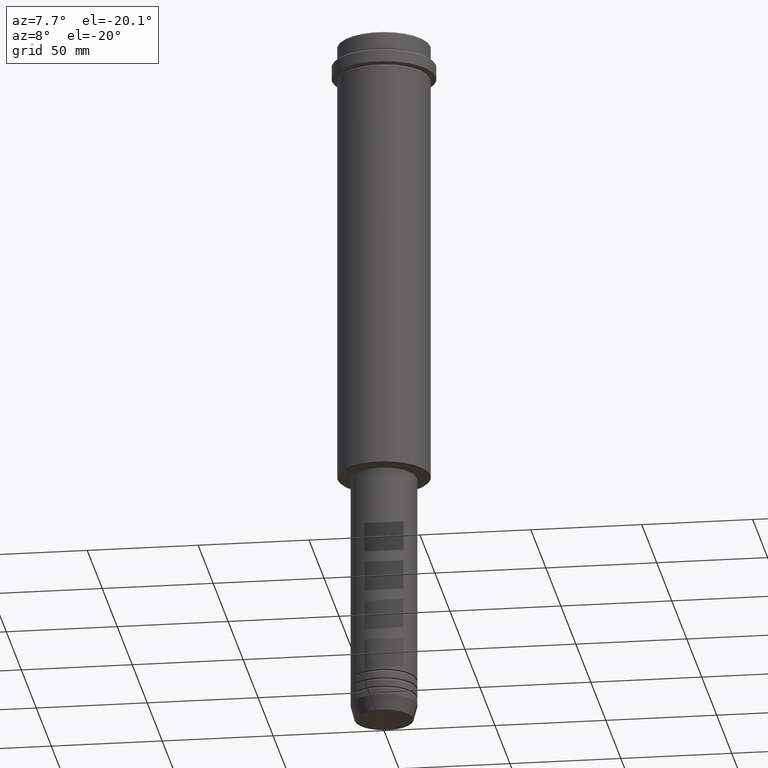
[diagram: clean part render]
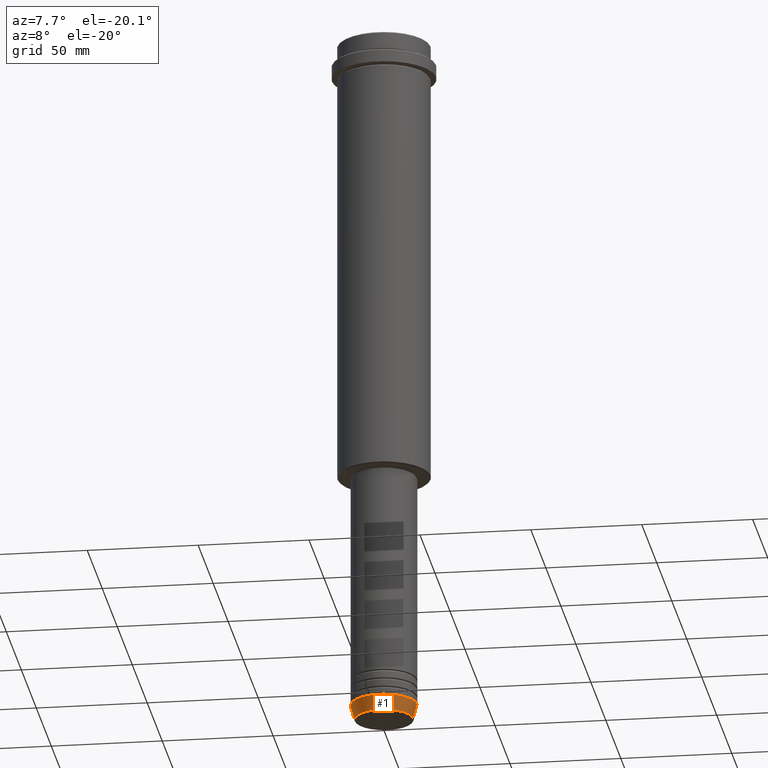
[diagram: same view with one face highlighted and labeled with its STEP entity id]
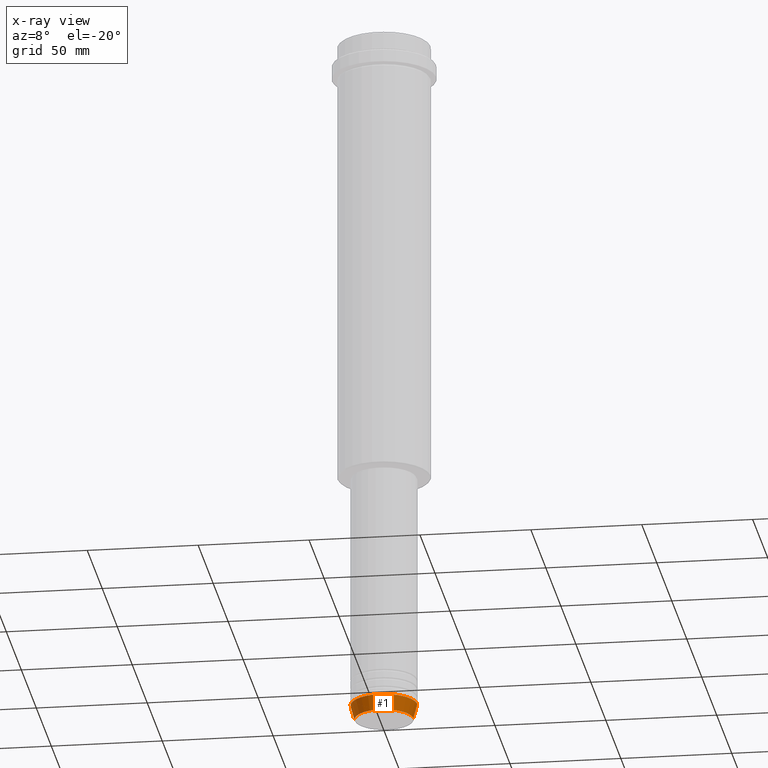
[diagram: x-ray of the same camera — body ghosted, the highlighted face saturated]
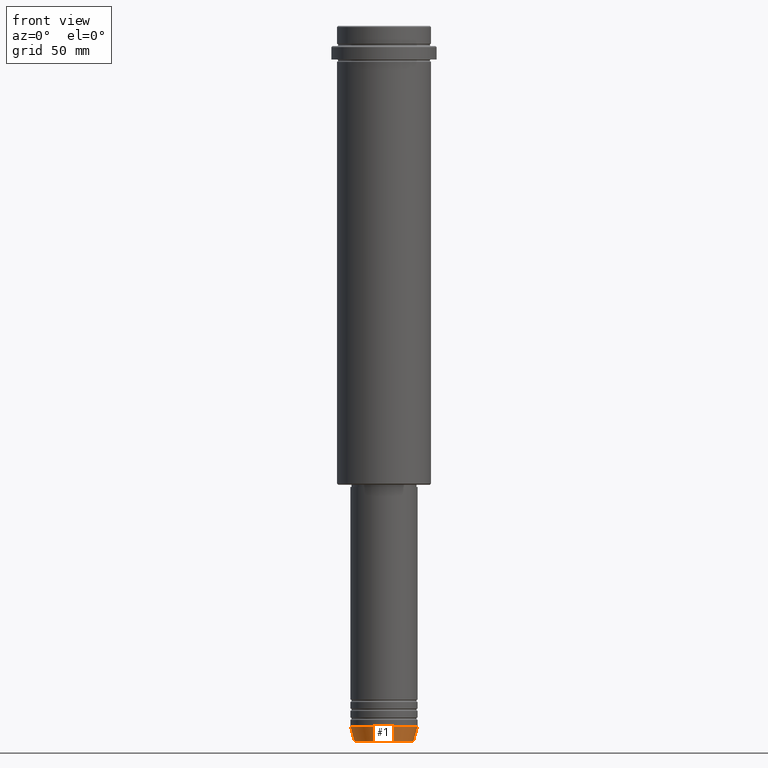
[diagram: same view with one face highlighted and labeled with its STEP entity id]
A machine part, auxiliary view. The second image highlights one B-rep face of the part: STEP entity #1.
The next image is the same camera in x-ray: the body ghosted, the highlighted face saturated — about 0% of this face is hidden behind the body in this view.
A second angle (front view) of the same face is appended — the face is thin or edge-on in the first view.
In plain terms, the highlighted conical surface has half-angle 15 deg.
Its self-contained STEP definition (entity closure, byte-faithful):
#1 = ADVANCED_FACE ( 'NONE', ( #1081 ), #1137, .T. ) ;
#29 = AXIS2_PLACEMENT_3D ( 'NONE', #944, #1382, #509 ) ;
#69 = CARTESIAN_POINT ( 'NONE',  ( 15.00000000000000000, 0.000000000000000000, -313.0000000000000000 ) ) ;
#168 = EDGE_LOOP ( 'NONE', ( #562, #508, #571, #233 ) ) ;
#205 = DIRECTION ( 'NONE',  ( -0.2588190451025213501, 3.169619151431772337E-17, 0.9659258262890680902 ) ) ;
#233 = ORIENTED_EDGE ( 'NONE', *, *, #819, .F. ) ;
#236 = VERTEX_POINT ( 'NONE', #632 ) ;
#313 = CIRCLE ( 'NONE', #29, 15.00000000000000000 ) ;
#348 = CARTESIAN_POINT ( 'NONE',  ( 13.22365507213718772, 0.000000000000000000, -319.6294095225513274 ) ) ;
#401 = DIRECTION ( 'NONE',  ( 1.000000000000000000, 0.000000000000000000, 0.000000000000000000 ) ) ;
#448 = AXIS2_PLACEMENT_3D ( 'NONE', #1183, #1414, #865 ) ;
#462 = VERTEX_POINT ( 'NONE', #1349 ) ;
#500 = VECTOR ( 'NONE', #1174, 1000.000000000000000 ) ;
#508 = ORIENTED_EDGE ( 'NONE', *, *, #1243, .T. ) ;
#509 = DIRECTION ( 'NONE',  ( 1.000000000000000000, 0.000000000000000000, 0.000000000000000000 ) ) ;
#562 = ORIENTED_EDGE ( 'NONE', *, *, #1402, .F. ) ;
#571 = ORIENTED_EDGE ( 'NONE', *, *, #1058, .T. ) ;
#632 = CARTESIAN_POINT ( 'NONE',  ( -13.22365507213718772, 1.728200442216588386E-15, -319.6294095225513274 ) ) ;
#806 = CIRCLE ( 'NONE', #848, 13.22365507213718772 ) ;
#819 = EDGE_CURVE ( 'NONE', #1416, #462, #313, .T. ) ;
#848 = AXIS2_PLACEMENT_3D ( 'NONE', #1172, #1387, #401 ) ;
#865 = DIRECTION ( 'NONE',  ( 1.000000000000000000, 0.000000000000000000, 0.000000000000000000 ) ) ;
#871 = VECTOR ( 'NONE', #205, 1000.000000000000000 ) ;
#944 = CARTESIAN_POINT ( 'NONE',  ( 0.000000000000000000, 0.000000000000000000, -313.0000000000000000 ) ) ;
#978 = CARTESIAN_POINT ( 'NONE',  ( -15.00000000000000000, 1.836970198721029589E-15, -313.0000000000000000 ) ) ;
#1058 = EDGE_CURVE ( 'NONE', #1342, #462, #1269, .T. ) ;
#1064 = CARTESIAN_POINT ( 'NONE',  ( -15.00000000000000000, 1.836970198721029589E-15, -313.0000000000000000 ) ) ;
#1081 = FACE_OUTER_BOUND ( 'NONE', #168, .T. ) ;
#1137 = CONICAL_SURFACE ( 'NONE', #448, 15.00000000000000000, 0.2617993877991500740 ) ;
#1172 = CARTESIAN_POINT ( 'NONE',  ( 0.000000000000000000, 0.000000000000000000, -319.6294095225513274 ) ) ;
#1174 = DIRECTION ( 'NONE',  ( 0.2588190451025213501, 0.000000000000000000, 0.9659258262890680902 ) ) ;
#1183 = CARTESIAN_POINT ( 'NONE',  ( 0.000000000000000000, 0.000000000000000000, -313.0000000000000000 ) ) ;
#1193 = LINE ( 'NONE', #978, #871 ) ;
#1243 = EDGE_CURVE ( 'NONE', #236, #1342, #806, .T. ) ;
#1269 = LINE ( 'NONE', #69, #500 ) ;
#1342 = VERTEX_POINT ( 'NONE', #348 ) ;
#1349 = CARTESIAN_POINT ( 'NONE',  ( 15.00000000000000000, 0.000000000000000000, -313.0000000000000000 ) ) ;
#1382 = DIRECTION ( 'NONE',  ( -0.000000000000000000, -0.000000000000000000, 1.000000000000000000 ) ) ;
#1387 = DIRECTION ( 'NONE',  ( -0.000000000000000000, -0.000000000000000000, 1.000000000000000000 ) ) ;
#1402 = EDGE_CURVE ( 'NONE', #236, #1416, #1193, .T. ) ;
#1414 = DIRECTION ( 'NONE',  ( -0.000000000000000000, -0.000000000000000000, 1.000000000000000000 ) ) ;
#1416 = VERTEX_POINT ( 'NONE', #1064 ) ;